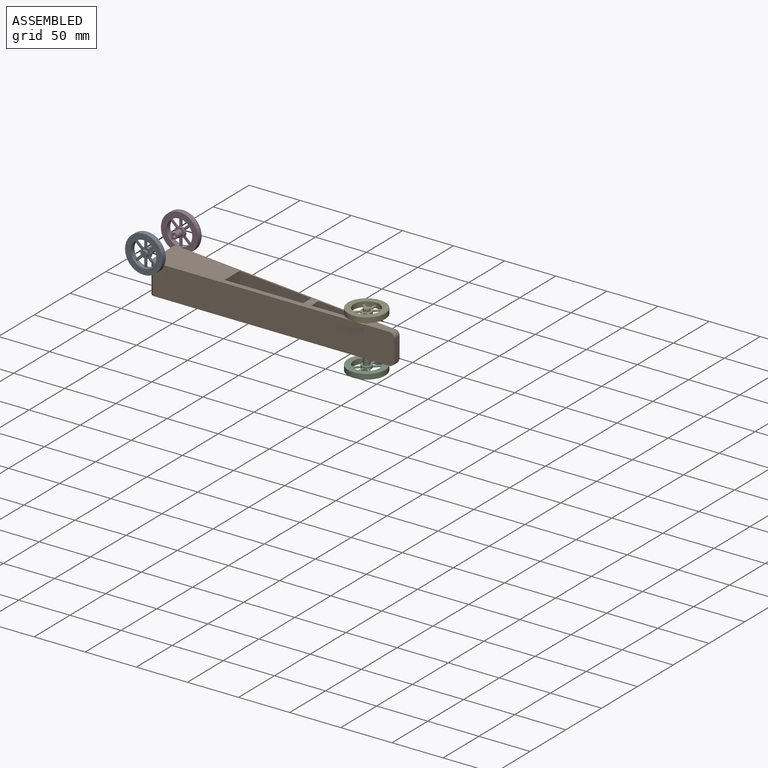
[diagram: assembled view]
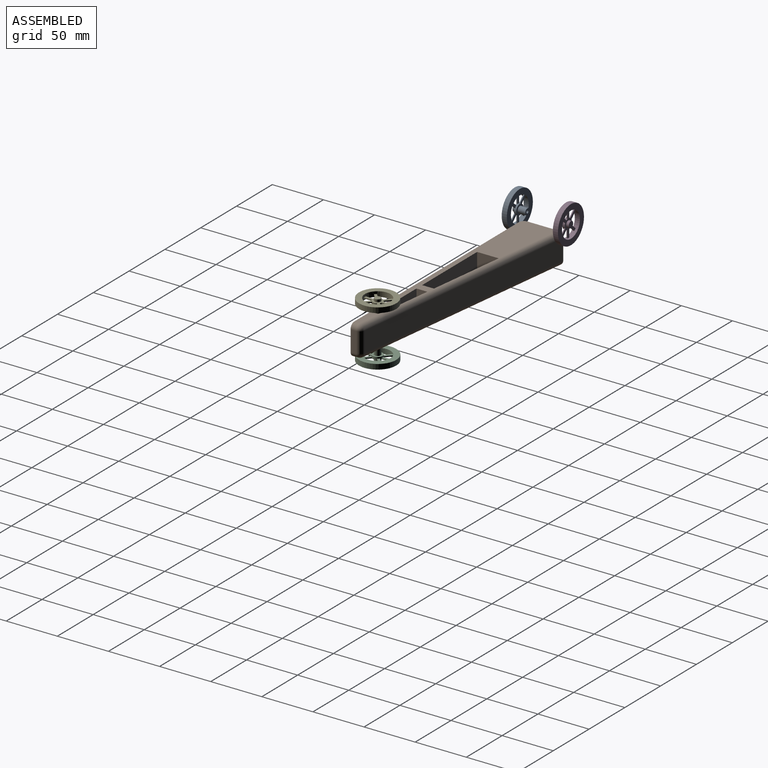
[diagram: assembled view, second angle]
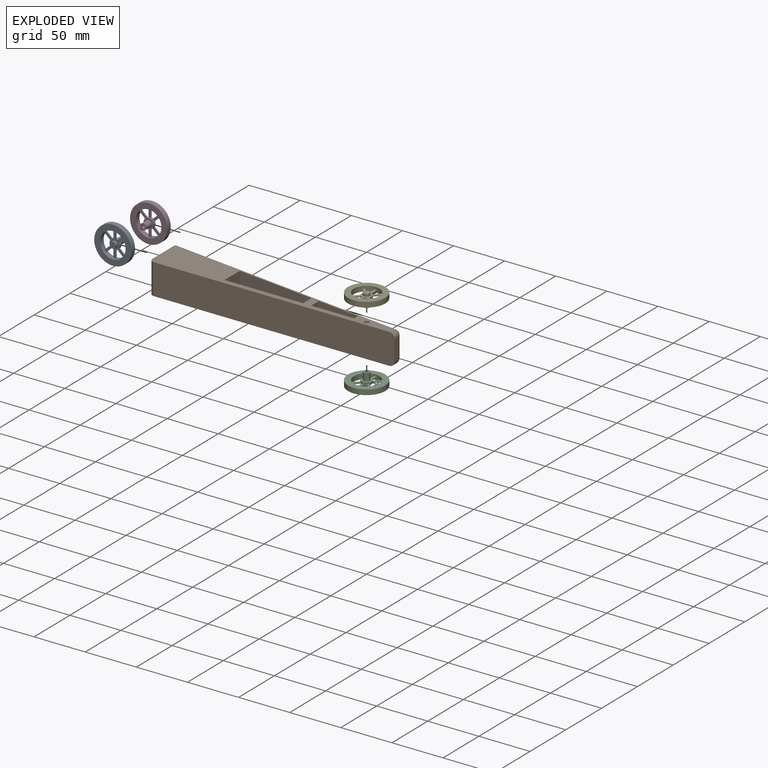
[diagram: exploded view]
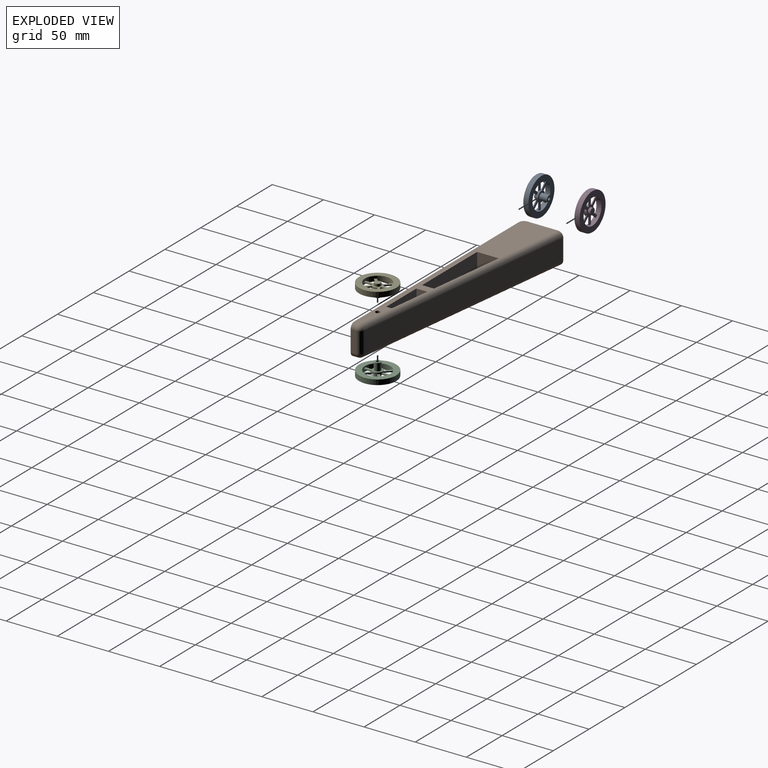
[diagram: exploded view, second angle]
ASSEMBLY  parts=5 mates=2
PART A: 31 faces, bbox 36.4x12.5x36.4 mm
  f0: cylinder r=3.1mm len=7.5mm, axis (0,1,0), area 146.1mm2, adj f2,f5
  f1: cylinder r=1.5mm len=10mm, axis (0,1,0), area 94.2mm2, adj f2,f3
  f2: plane 6.2x6.2mm, normal (0,1,0), area 23.1mm2, adj f0,f1
  f3: plane 3x3mm, normal (0,1,0), area 7.1mm2, adj f1
  f4: cylinder r=5mm len=10mm, axis (0,-1,0), area 64mm2, adj f5,f6,f9,f10,f11,f12,f13,f14
  f5: plane 10x10mm, normal (0,1,0), area 48.3mm2, adj f0,f4
  f6: plane 25.02x19.87mm, normal (0,-1,0), area 156.8mm2, adj f4,f8,f9,f10,f12,f13,f15,f16
  f7: plane 6.18x6.18mm, normal (0,-1,0), area 30mm2, adj f8
  f8: cylinder r=3.09mm len=6.18mm, axis (0,1,0), area 48.5mm2, adj f6,f7
  f9: plane 5.55x5.17mm, normal (0.68,0,-0.73), area 7.6mm2, adj f4,f6,f11,f27
  f10: plane 5.55x5.17mm, normal (-0.68,0,0.73), area 7.6mm2, adj f4,f6,f11,f27
  f11: plane 7.19x6.93mm, normal (0,1,0), area 18.1mm2, adj f4,f9,f10,f27
  f12: plane 7.59x1mm, normal (1,0,0), area 7.6mm2, adj f4,f6,f14,f27
  f13: plane 7.59x1mm, normal (-1,0,0), area 7.6mm2, adj f4,f6,f14,f27
  f14: plane 7.65x2.4mm, normal (0,1,0), area 18.1mm2, adj f4,f12,f13,f27
  f15: plane 5.55x5.17mm, normal (-0.68,0,-0.73), area 7.6mm2, adj f4,f6,f17,f27
  f16: plane 5.55x5.17mm, normal (0.68,0,0.73), area 7.6mm2, adj f4,f6,f17,f27
  f17: plane 7.19x6.93mm, normal (0,1,0), area 18.1mm2, adj f4,f15,f16,f27
  f18: plane 5.55x5.17mm, normal (-0.68,0,0.73), area 7.6mm2, adj f4,f6,f20,f27
  f19: plane 5.55x5.17mm, normal (0.68,0,-0.73), area 7.6mm2, adj f4,f6,f20,f27
  f20: plane 7.19x6.93mm, normal (0,1,0), area 18.1mm2, adj f4,f18,f19,f27
  f21: plane 7.59x1mm, normal (-1,0,0), area 7.6mm2, adj f4,f6,f23,f27
  f22: plane 7.59x1mm, normal (1,0,0), area 7.6mm2, adj f4,f6,f23,f27
  f23: plane 7.65x2.4mm, normal (0,1,0), area 18.1mm2, adj f4,f21,f22,f27
  f24: plane 5.55x5.17mm, normal (-0.68,0,-0.73), area 7.6mm2, adj f4,f6,f26,f27
  f25: plane 5.55x5.17mm, normal (0.68,0,0.73), area 7.6mm2, adj f4,f6,f26,f27
  f26: plane 7.19x6.93mm, normal (0,1,0), area 18.1mm2, adj f4,f24,f25,f27
  f27: cylinder r=12.5mm len=25mm, axis (0,1,0), area 378.3mm2, adj f6,f9,f10,f11,f12,f13,f14,f15
  f28: cylinder r=18.2mm len=36.4mm, axis (0,1,0), area 571.8mm2, adj f29,f30
  f29: plane 36.4x36.4mm, normal (0,-1,0), area 549.7mm2, adj f27,f28
  f30: plane 36.4x36.4mm, normal (0,1,0), area 549.7mm2, adj f27,f28
PART B: 25 faces, bbox 240.6x40x30 mm
  f0: plane 235x34.96mm, normal (0,0,1), area 3152.7mm2, adj f2,f3,f7,f9,f11,f16,f17,f18
  f1: plane 235x34.96mm, normal (0,0,-1), area 3152.7mm2, adj f2,f3,f7,f8,f15,f16,f17,f18
  f2: plane 35x30mm, normal (-1,0,0), area 960.6mm2, adj f0,f1,f5,f6,f7,f11,f15
  f3: plane 235x30mm, normal (0,-1,0), area 7039.3mm2, adj f0,f1,f4,f7,f8,f9
  f4: plane 20x5.59mm, normal (1,0,0), area 111.7mm2, adj f3,f8,f9,f13
  f5: cylinder r=5mm len=55mm, axis (-1,0,0), area 1727.9mm2, adj f2,f10
  f6: plane 235.62x29.45mm, normal (0.12,0.99,0), area 4749.1mm2, adj f2,f11,f13,f15
  f7: cylinder r=5mm len=30mm, axis (0,0,1), area 235.6mm2, adj f0,f1,f2,f3
  f8: cylinder r=5mm len=5.59mm, axis (0,1,0), area 43.9mm2, adj f1,f3,f4,f14
  f9: cylinder r=5mm len=5.59mm, axis (0,-1,0), area 43.9mm2, adj f0,f3,f4,f12
  f10: sphere r=5mm, area 157.1mm2, adj f5
  f11: cylinder r=5mm len=236.24mm, axis (-0.99,0.12,0), area 1863.2mm2, adj f0,f2,f6,f12,f19,f23
  f12: sphere r=5mm, area 36.2mm2, adj f9,f11,f13
  f13: cylinder r=5mm len=20mm, axis (0,0,1), area 144.6mm2, adj f4,f6,f12,f14
  f14: sphere r=5mm, area 36.2mm2, adj f8,f13,f15
  f15: cylinder r=5mm len=236.24mm, axis (0.99,-0.12,0), area 1863.2mm2, adj f1,f2,f6,f14,f19,f23
  f16: plane 76.77x30mm, normal (0,1,0), area 2303.2mm2, adj f0,f1,f17,f18
  f17: plane 30x11.56mm, normal (-1,0,0), area 346.9mm2, adj f0,f1,f16,f19
  f18: plane 30x21.16mm, normal (1,0,0), area 634.8mm2, adj f0,f1,f16,f19
  f19: plane 76.77x30mm, normal (-0.12,-0.99,0), area 2321.1mm2, adj f11,f15,f17,f18
  f20: plane 42.08x30mm, normal (0,1,0), area 1262.4mm2, adj f0,f1,f21,f22
  f21: plane 30x5.31mm, normal (-1,0,0), area 159.4mm2, adj f0,f1,f20,f23
  f22: plane 30x10.57mm, normal (1,0,0), area 317.2mm2, adj f0,f1,f20,f23
  f23: plane 42.08x30mm, normal (-0.12,-0.99,0), area 1272.2mm2, adj f11,f15,f21,f22
  f24: cylinder r=2.25mm len=30mm, axis (0,0,1), area 424.1mm2, adj f0,f1
PART C: 31 faces, bbox 36.4x12.5x36.4 mm
  f0: cylinder r=3.1mm len=7.5mm, axis (0,-1,0), area 146.1mm2, adj f2,f5
  f1: cylinder r=1.5mm len=10mm, axis (0,-1,0), area 94.2mm2, adj f2,f3
  f2: plane 6.2x6.2mm, normal (0,-1,0), area 23.1mm2, adj f0,f1
  f3: plane 3x3mm, normal (0,-1,0), area 7.1mm2, adj f1
  f4: cylinder r=5mm len=10mm, axis (0,1,0), area 64mm2, adj f5,f6,f9,f10,f11,f12,f13,f14
  f5: plane 10x10mm, normal (0,-1,0), area 48.3mm2, adj f0,f4
  f6: plane 25.02x19.87mm, normal (0,1,0), area 156.8mm2, adj f4,f8,f9,f10,f12,f13,f15,f16
  f7: plane 6.18x6.18mm, normal (0,1,0), area 30mm2, adj f8
  f8: cylinder r=3.09mm len=6.18mm, axis (0,-1,0), area 48.5mm2, adj f6,f7
  f9: plane 5.55x5.17mm, normal (0.68,0,-0.73), area 7.6mm2, adj f4,f6,f11,f27
  f10: plane 5.55x5.17mm, normal (-0.68,0,0.73), area 7.6mm2, adj f4,f6,f11,f27
  f11: plane 7.19x6.93mm, normal (0,-1,0), area 18.1mm2, adj f4,f9,f10,f27
  f12: plane 7.59x1mm, normal (1,0,0), area 7.6mm2, adj f4,f6,f14,f27
  f13: plane 7.59x1mm, normal (-1,0,0), area 7.6mm2, adj f4,f6,f14,f27
  f14: plane 7.65x2.4mm, normal (0,-1,0), area 18.1mm2, adj f4,f12,f13,f27
  f15: plane 5.55x5.17mm, normal (-0.68,0,-0.73), area 7.6mm2, adj f4,f6,f17,f27
  f16: plane 5.55x5.17mm, normal (0.68,0,0.73), area 7.6mm2, adj f4,f6,f17,f27
  f17: plane 7.19x6.93mm, normal (0,-1,0), area 18.1mm2, adj f4,f15,f16,f27
  f18: plane 5.55x5.17mm, normal (-0.68,0,0.73), area 7.6mm2, adj f4,f6,f20,f27
  f19: plane 5.55x5.17mm, normal (0.68,0,-0.73), area 7.6mm2, adj f4,f6,f20,f27
  f20: plane 7.19x6.93mm, normal (0,-1,0), area 18.1mm2, adj f4,f18,f19,f27
  f21: plane 7.59x1mm, normal (-1,0,0), area 7.6mm2, adj f4,f6,f23,f27
  f22: plane 7.59x1mm, normal (1,0,0), area 7.6mm2, adj f4,f6,f23,f27
  f23: plane 7.65x2.4mm, normal (0,-1,0), area 18.1mm2, adj f4,f21,f22,f27
  f24: plane 5.55x5.17mm, normal (-0.68,0,-0.73), area 7.6mm2, adj f4,f6,f26,f27
  f25: plane 5.55x5.17mm, normal (0.68,0,0.73), area 7.6mm2, adj f4,f6,f26,f27
  f26: plane 7.19x6.93mm, normal (0,-1,0), area 18.1mm2, adj f4,f24,f25,f27
  f27: cylinder r=12.5mm len=25mm, axis (0,-1,0), area 378.3mm2, adj f6,f9,f10,f11,f12,f13,f14,f15
  f28: cylinder r=18.2mm len=36.4mm, axis (0,-1,0), area 571.8mm2, adj f29,f30
  f29: plane 36.4x36.4mm, normal (0,1,0), area 549.7mm2, adj f27,f28
  f30: plane 36.4x36.4mm, normal (0,-1,0), area 549.7mm2, adj f27,f28
PART D: same geometry as C
PART E: same geometry as A
PLACE A t=(-104.68,-13.54,-14.98)mm
PLACE B t=(-20.48,16.46,-6.27)mm
PLACE C rot(axis=(-1,0,0),90deg) t=(104.66,-13.54,-28.57)mm
PLACE D t=(-104.68,-8.54,-14.98)mm
PLACE E rot(axis=(-1,0,0),90deg) t=(104.66,-13.54,-23.57)mm
MATE revolute E.f0 <-> B.f24  axis (0,0,-1) through (104.66,-13.54,-23.57)mm
MATE revolute C.f0 <-> B.f24  axis (0,0,1) through (104.66,-13.54,-53.57)mm
